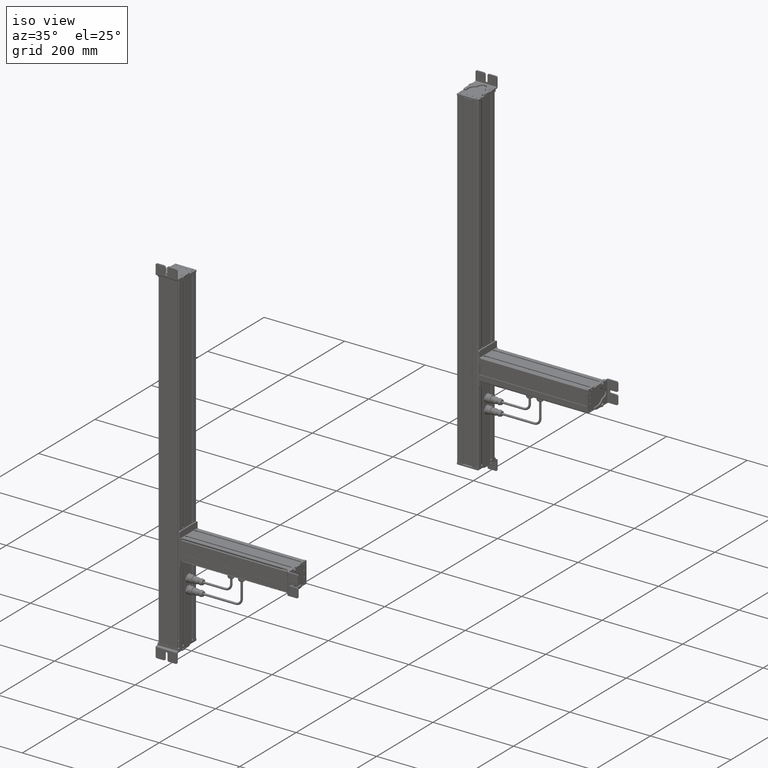
[diagram: clean part render]
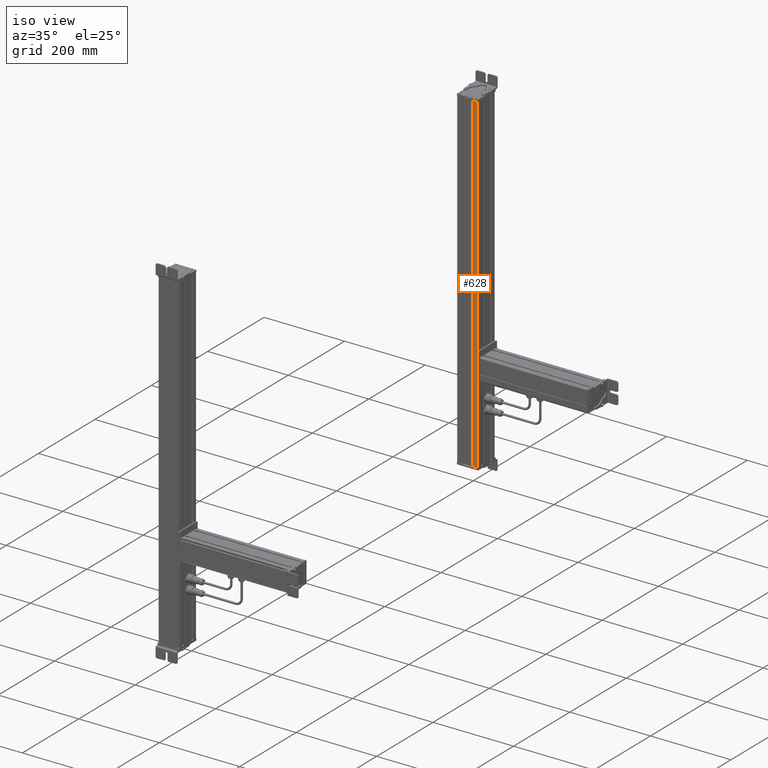
[diagram: same view with one face highlighted and labeled with its STEP entity id]
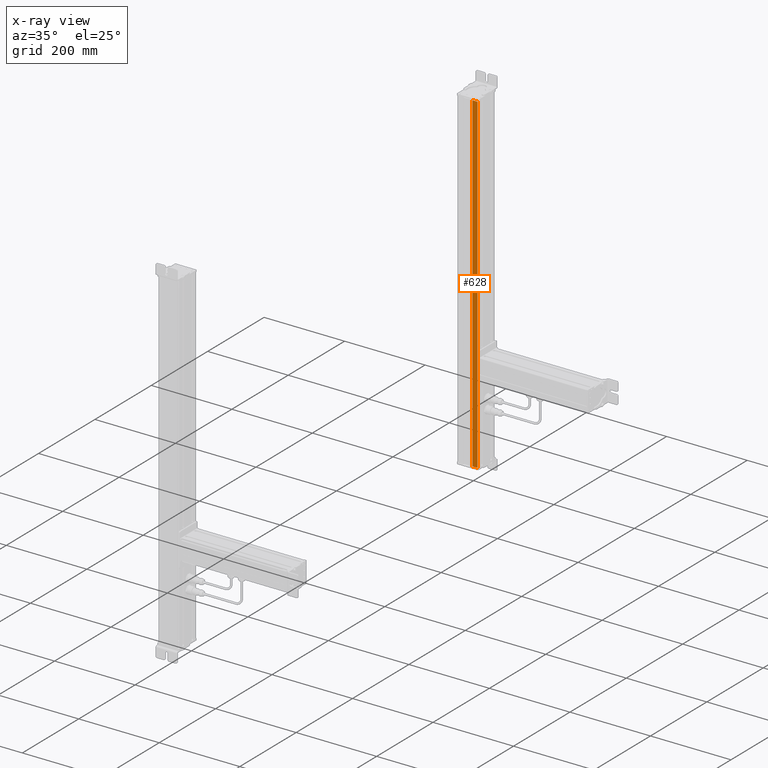
[diagram: x-ray of the same camera — body ghosted, the highlighted face saturated]
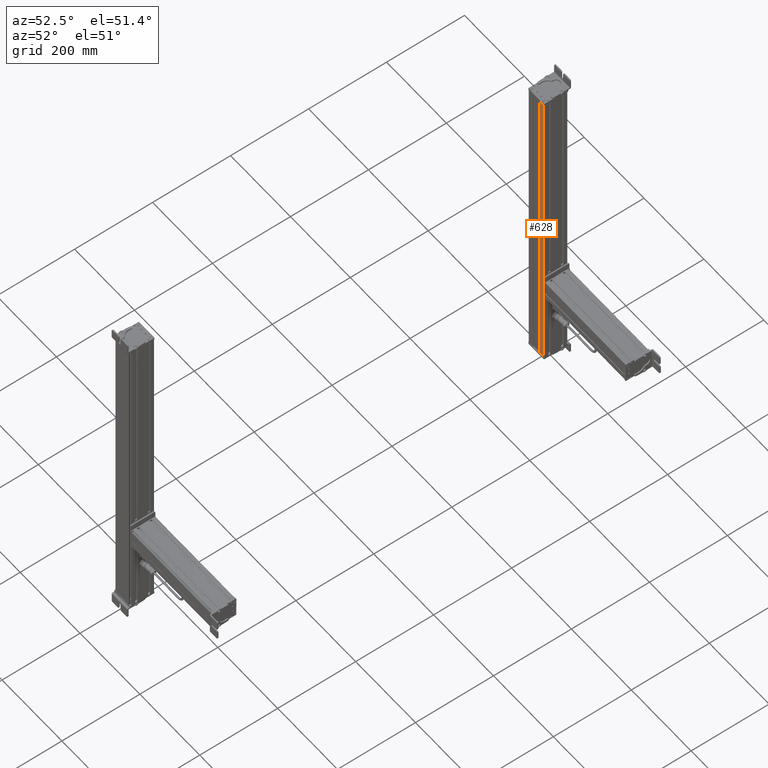
[diagram: same view with one face highlighted and labeled with its STEP entity id]
A machine part, iso view. The second image highlights one B-rep face of the part: STEP entity #628.
The next image is the same camera in x-ray: the body ghosted, the highlighted face saturated — about 0% of this face is hidden behind the body in this view.
A second angle (auxiliary view) of the same face is appended — the face is thin or edge-on in the first view.
In plain terms, the highlighted planar face has unit normal (0, -1, 0).
Its self-contained STEP definition (entity closure, byte-faithful):
#576=CARTESIAN_POINT('Vertex',(627.895548938,182.060203323,0.)) ;
#579=CARTESIAN_POINT('Line Origine',(627.895548938,182.060203323,411.)) ;
#583=CARTESIAN_POINT('Vertex',(627.895548938,182.060203323,822.)) ;
#598=CARTESIAN_POINT('Axis2P3D Location',(664.195883662,182.060203323,0.)) ;
#603=CARTESIAN_POINT('Line Origine',(621.545548937,182.060203323,0.)) ;
#607=CARTESIAN_POINT('Vertex',(615.195548937,182.060203323,0.)) ;
#610=CARTESIAN_POINT('Line Origine',(615.195548937,182.060203323,411.)) ;
#614=CARTESIAN_POINT('Vertex',(615.195548937,182.060203323,822.)) ;
#617=CARTESIAN_POINT('Line Origine',(621.545548937,182.060203323,822.)) ;
#580=DIRECTION('Vector Direction',(0.,0.,1.)) ;
#599=DIRECTION('Axis2P3D Direction',(0.,1.,-0.)) ;
#600=DIRECTION('Axis2P3D XDirection',(-1.,0.,0.)) ;
#604=DIRECTION('Vector Direction',(-1.,0.,0.)) ;
#611=DIRECTION('Vector Direction',(0.,0.,1.)) ;
#618=DIRECTION('Vector Direction',(-1.,0.,0.)) ;
#601=AXIS2_PLACEMENT_3D('Plane Axis2P3D',#598,#599,#600) ;
#623=ORIENTED_EDGE('',*,*,#585,.F.) ;
#624=ORIENTED_EDGE('',*,*,#609,.T.) ;
#625=ORIENTED_EDGE('',*,*,#616,.T.) ;
#626=ORIENTED_EDGE('',*,*,#621,.F.) ;
#581=VECTOR('Line Direction',#580,1.) ;
#605=VECTOR('Line Direction',#604,1.) ;
#612=VECTOR('Line Direction',#611,1.) ;
#619=VECTOR('Line Direction',#618,1.) ;
#628=ADVANCED_FACE('Body.2',(#627),#602,.T.) ;
#585=EDGE_CURVE('',#577,#584,#582,.T.) ;
#609=EDGE_CURVE('',#577,#608,#606,.T.) ;
#616=EDGE_CURVE('',#608,#615,#613,.T.) ;
#621=EDGE_CURVE('',#584,#615,#620,.T.) ;
#622=EDGE_LOOP('',(#623,#624,#625,#626)) ;
#627=FACE_OUTER_BOUND('',#622,.T.) ;
#582=LINE('Line',#579,#581) ;
#606=LINE('Line',#603,#605) ;
#613=LINE('Line',#610,#612) ;
#620=LINE('Line',#617,#619) ;
#602=PLANE('Plane',#601) ;
#577=VERTEX_POINT('',#576) ;
#584=VERTEX_POINT('',#583) ;
#608=VERTEX_POINT('',#607) ;
#615=VERTEX_POINT('',#614) ;